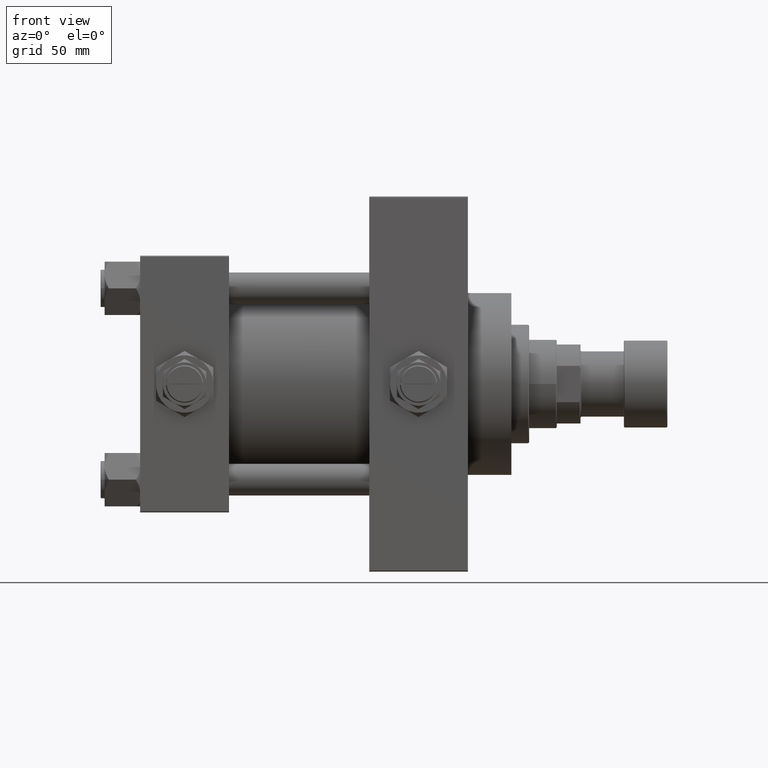
[diagram: clean part render]
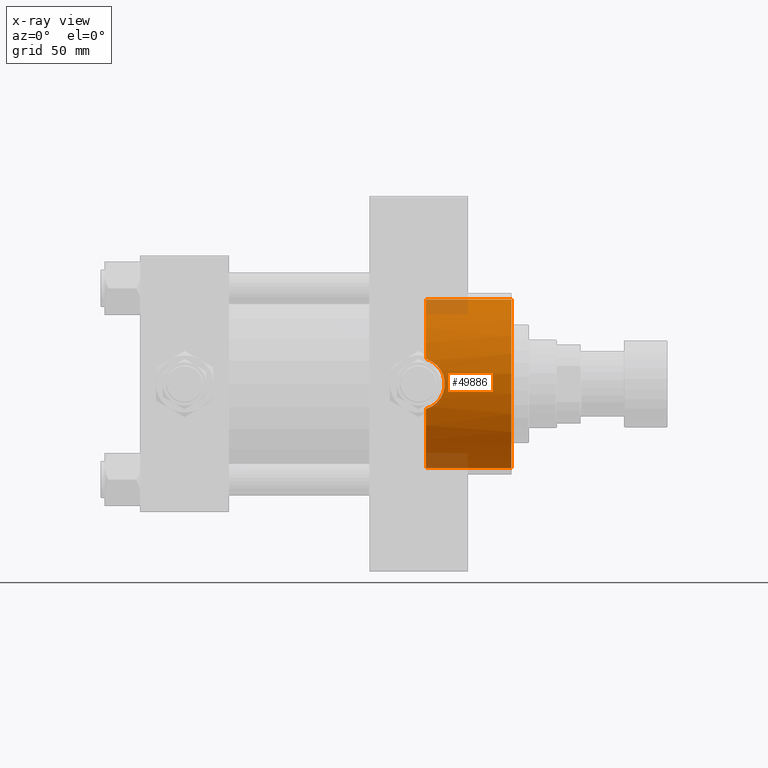
[diagram: x-ray — body ghosted, one internal face saturated and labeled with its STEP entity id]
A machine part, front view, then the same camera in x-ray: the body is ghosted and one INTERNAL B-rep face — a face not visible from any outside direction — is saturated and labeled: STEP entity #49886.
In plain terms, the highlighted cylindrical surface (partial cylindrical patch) has radius 42.75 mm, axis along (1, 0, 0).
Its self-contained STEP definition (entity closure, byte-faithful):
#80 = VERTEX_POINT ( 'NONE', #40852 ) ;
#111 = AXIS2_PLACEMENT_3D ( 'NONE', #32105, #27549, #7745 ) ;
#1821 = LINE ( 'NONE', #8693, #27848 ) ;
#2828 = VERTEX_POINT ( 'NONE', #7087 ) ;
#3014 = CARTESIAN_POINT ( 'NONE',  ( 148.8355753955777629, -41.40179266465073482, -10.65353493722052391 ) ) ;
#3266 = CARTESIAN_POINT ( 'NONE',  ( 147.3542414019935052, -41.14336595071721092, -11.61405540322419405 ) ) ;
#3781 = CARTESIAN_POINT ( 'NONE',  ( 153.9355267676178016, -42.66274983104982255, 2.818638351193893055 ) ) ;
#4592 = EDGE_CURVE ( 'NONE', #24390, #2828, #31759, .T. ) ;
#5372 = DIRECTION ( 'NONE',  ( 1.000000000000000000, -0.000000000000000000, -0.000000000000000000 ) ) ;
#6823 = CARTESIAN_POINT ( 'NONE',  ( 146.0866117877859551, -40.96674013684113902, -12.22248122208934618 ) ) ;
#7076 = CARTESIAN_POINT ( 'NONE',  ( 153.0363689430458010, -42.39775029133584638, 5.512880659442459752 ) ) ;
#7087 = CARTESIAN_POINT ( 'NONE',  ( 144.7399999999999807, -40.82623788692755795, 12.67993690836040521 ) ) ;
#7139 = ORIENTED_EDGE ( 'NONE', *, *, #44272, .F. ) ;
#7232 = CARTESIAN_POINT ( 'NONE',  ( 187.9999999999999716, 0.000000000000000000, 0.000000000000000000 ) ) ;
#7588 = CARTESIAN_POINT ( 'NONE',  ( 151.1624956355439053, -41.90350341365520137, 8.484592245230075491 ) ) ;
#7745 = DIRECTION ( 'NONE',  ( 0.000000000000000000, 0.000000000000000000, -1.000000000000000000 ) ) ;
#8386 = VERTEX_POINT ( 'NONE', #47069 ) ;
#8693 = CARTESIAN_POINT ( 'NONE',  ( 144.7399999999999807, 0.000000000000000000, -42.75000000000000000 ) ) ;
#10181 = VERTEX_POINT ( 'NONE', #22597 ) ;
#10536 = EDGE_CURVE ( 'NONE', #80, #26318, #22796, .T. ) ;
#10889 = CARTESIAN_POINT ( 'NONE',  ( 150.6811910902559077, -41.78848794132222366, -9.029589412144906291 ) ) ;
#11014 = ORIENTED_EDGE ( 'NONE', *, *, #39110, .T. ) ;
#11047 = DIRECTION ( 'NONE',  ( 0.000000000000000000, 0.000000000000000000, -1.000000000000000000 ) ) ;
#11400 = CARTESIAN_POINT ( 'NONE',  ( 147.9852428248123601, -41.24640677797844290, 11.24586139236918214 ) ) ;
#11646 = CARTESIAN_POINT ( 'NONE',  ( 144.7399999999999807, -40.82623788692755795, 12.67993690836040521 ) ) ;
#14686 = CARTESIAN_POINT ( 'NONE',  ( 154.1610424353113729, -42.73166586794579302, -1.434504108584242932 ) ) ;
#15207 = CARTESIAN_POINT ( 'NONE',  ( 149.6630199548697249, -41.56646507779676369, -9.992219170631100766 ) ) ;
#15460 = CARTESIAN_POINT ( 'NONE',  ( 153.7463103793545258, -42.60581913250618413, -3.525264913244961829 ) ) ;
#16578 = CARTESIAN_POINT ( 'NONE',  ( 144.7399999999999807, 0.000000000000000000, 0.000000000000000000 ) ) ;
#18493 = CARTESIAN_POINT ( 'NONE',  ( 151.7830761643834308, -42.05979779156207599, -7.656286047219433399 ) ) ;
#18986 = CARTESIAN_POINT ( 'NONE',  ( 144.7399999999999807, 5.235365066354935472E-15, 42.75000000000000000 ) ) ;
#19272 = CARTESIAN_POINT ( 'NONE',  ( 153.0298137930814732, -42.39589313351282129, -5.526869527314861585 ) ) ;
#21773 = DIRECTION ( 'NONE',  ( 1.000000000000000000, -0.000000000000000000, -0.000000000000000000 ) ) ;
#22000 = FACE_OUTER_BOUND ( 'NONE', #46667, .T. ) ;
#22315 = CARTESIAN_POINT ( 'NONE',  ( 152.5392672892635346, -42.26019519886384757, -6.460440162556747801 ) ) ;
#22569 = CARTESIAN_POINT ( 'NONE',  ( 154.1061453106131012, -42.71489450414986067, 1.767314014186006421 ) ) ;
#22597 = CARTESIAN_POINT ( 'NONE',  ( 187.9999999999999716, 0.000000000000000000, -42.75000000000000000 ) ) ;
#22796 = LINE ( 'NONE', #18986, #45720 ) ;
#23335 = CARTESIAN_POINT ( 'NONE',  ( 154.1491276445503900, -42.72812791392467346, 1.413347075717686252 ) ) ;
#24390 = VERTEX_POINT ( 'NONE', #26374 ) ;
#24421 = ORIENTED_EDGE ( 'NONE', *, *, #37759, .F. ) ;
#26000 = AXIS2_PLACEMENT_3D ( 'NONE', #7232, #38727, #11047 ) ;
#26128 = CARTESIAN_POINT ( 'NONE',  ( 146.0894838391766086, -40.96701803660458552, 12.22163151364322786 ) ) ;
#26318 = VERTEX_POINT ( 'NONE', #26414 ) ;
#26374 = CARTESIAN_POINT ( 'NONE',  ( 144.7399999999999807, -40.82623788692756506, -12.67993690836039988 ) ) ;
#26389 = CARTESIAN_POINT ( 'NONE',  ( 151.1459938556710938, -41.89947882874084684, -8.504551669291311455 ) ) ;
#26414 = CARTESIAN_POINT ( 'NONE',  ( 187.9999999999999716, 5.235365066354935472E-15, 42.75000000000000000 ) ) ;
#26900 = CARTESIAN_POINT ( 'NONE',  ( 145.4270130609600642, -40.88917361113285409, 12.47729955562274995 ) ) ;
#27151 = CARTESIAN_POINT ( 'NONE',  ( 147.9623401956243640, -41.24246182355483370, -11.26040908465783552 ) ) ;
#27549 = DIRECTION ( 'NONE',  ( 1.000000000000000000, 0.000000000000000000, 0.000000000000000000 ) ) ;
#27652 = CIRCLE ( 'NONE', #26000, 42.75000000000000000 ) ;
#27848 = VECTOR ( 'NONE', #5372, 1000.000000000000000 ) ;
#29382 = CARTESIAN_POINT ( 'NONE',  ( 144.7399999999999807, 0.000000000000000000, 0.000000000000000000 ) ) ;
#30199 = CARTESIAN_POINT ( 'NONE',  ( 153.3069645189583525, -42.47597988253321688, -4.879662359427102913 ) ) ;
#30715 = CARTESIAN_POINT ( 'NONE',  ( 149.9249778787971650, -41.62197581820226588, -9.758883457264644790 ) ) ;
#30845 = ORIENTED_EDGE ( 'NONE', *, *, #4592, .T. ) ;
#30952 = CIRCLE ( 'NONE', #111, 42.75000000000000000 ) ;
#30966 = CARTESIAN_POINT ( 'NONE',  ( 149.1389740240205128, -41.45739201802923191, 10.44126992344761362 ) ) ;
#31636 = CIRCLE ( 'NONE', #39701, 42.75000000000000000 ) ;
#31759 = B_SPLINE_CURVE_WITH_KNOTS ( 'NONE', 3,
 ( #46423, #34252, #6823, #3266, #27151, #3014, #49991, #15207, #30715, #10889, #26389, #18493, #41594, #49725, #22315, #19272, #30199, #45403, #15460, #49207, #37812, #14686, #33996, #34510, #45657, #23335, #22569, #3781, #46172, #42616, #7076, #33750, #49466, #7588, #34760, #50239, #30966, #11400, #41848, #26128, #26900, #11646 ),
 .UNSPECIFIED., .F., .F.,
 ( 4, 2, 2, 2, 2, 2, 2, 2, 2, 2, 2, 2, 2, 2, 2, 2, 2, 2, 2, 2, 4 ),
 ( 0.000000000000000000, 0.002125631886811253993, 0.004251263773622507985, 0.005314079717028102022, 0.006376895660433695191, 0.008502527547244880662, 0.009565343490650501587, 0.01062815943405612251, 0.01275379132086732273, 0.01381660726427291243, 0.01487942320767850039, 0.01700505509448966418, 0.01806787103789524868, 0.01913068698130082623, 0.02125631886811198135, 0.02338195075492312952, 0.02550758264173428116, 0.02763321452854543628, 0.02975884641535658792, 0.03188447830216774304, 0.03401011018897889121 ),
 .UNSPECIFIED. ) ;
#32105 = CARTESIAN_POINT ( 'NONE',  ( 144.7399999999999807, 0.000000000000000000, 0.000000000000000000 ) ) ;
#32839 = DIRECTION ( 'NONE',  ( 1.000000000000000000, 0.000000000000000000, 0.000000000000000000 ) ) ;
#33187 = CYLINDRICAL_SURFACE ( 'NONE', #34370, 42.75000000000000000 ) ;
#33750 = CARTESIAN_POINT ( 'NONE',  ( 152.3813469663714670, -42.21646729893778627, 6.762467872710391958 ) ) ;
#33996 = CARTESIAN_POINT ( 'NONE',  ( 154.2190876467556677, -42.74971786429958343, -0.7287734874664777429 ) ) ;
#34252 = CARTESIAN_POINT ( 'NONE',  ( 145.4270925851359095, -40.88918089616408480, -12.47727609963712858 ) ) ;
#34370 = AXIS2_PLACEMENT_3D ( 'NONE', #29382, #48659, #37502 ) ;
#34510 = CARTESIAN_POINT ( 'NONE',  ( 154.2204402740231899, -42.75013615013602220, 0.3392730657541593864 ) ) ;
#34760 = CARTESIAN_POINT ( 'NONE',  ( 150.6899591689121394, -41.79050880085012665, 9.020331125314262621 ) ) ;
#34825 = ORIENTED_EDGE ( 'NONE', *, *, #49200, .F. ) ;
#37502 = DIRECTION ( 'NONE',  ( 0.000000000000000000, 0.000000000000000000, -1.000000000000000000 ) ) ;
#37759 = EDGE_CURVE ( 'NONE', #80, #2828, #31636, .T. ) ;
#37812 = CARTESIAN_POINT ( 'NONE',  ( 153.9894081557862933, -42.67922043224351825, -2.483804695984515920 ) ) ;
#38727 = DIRECTION ( 'NONE',  ( 1.000000000000000000, 0.000000000000000000, 0.000000000000000000 ) ) ;
#39110 = EDGE_CURVE ( 'NONE', #26318, #10181, #27652, .T. ) ;
#39701 = AXIS2_PLACEMENT_3D ( 'NONE', #16578, #32839, #47554 ) ;
#40852 = CARTESIAN_POINT ( 'NONE',  ( 144.7399999999999807, 5.235365066354935472E-15, 42.75000000000000000 ) ) ;
#41594 = CARTESIAN_POINT ( 'NONE',  ( 151.9856094472935979, -42.11228528523244563, -7.362719038215900902 ) ) ;
#41848 = CARTESIAN_POINT ( 'NONE',  ( 147.3674952756207688, -41.14533651760912392, 11.60715841709176033 ) ) ;
#42616 = CARTESIAN_POINT ( 'NONE',  ( 153.3180906512883155, -42.47921328321765344, 4.851410986599765884 ) ) ;
#42951 = ORIENTED_EDGE ( 'NONE', *, *, #10536, .T. ) ;
#44272 = EDGE_CURVE ( 'NONE', #24390, #8386, #30952, .T. ) ;
#45403 = CARTESIAN_POINT ( 'NONE',  ( 153.6458388575748870, -42.57581106965982798, -3.870036135680953393 ) ) ;
#45657 = CARTESIAN_POINT ( 'NONE',  ( 154.2064277639875627, -42.74579618513911328, 0.6981213961015130254 ) ) ;
#45720 = VECTOR ( 'NONE', #21773, 1000.000000000000000 ) ;
#46172 = CARTESIAN_POINT ( 'NONE',  ( 153.7664851930732084, -42.61139927358282620, 3.505481660100332242 ) ) ;
#46423 = CARTESIAN_POINT ( 'NONE',  ( 144.7399999999999807, -40.82623788692756506, -12.67993690836039988 ) ) ;
#46667 = EDGE_LOOP ( 'NONE', ( #24421, #42951, #11014, #34825, #7139, #30845 ) ) ;
#47069 = CARTESIAN_POINT ( 'NONE',  ( 144.7399999999999807, 0.000000000000000000, -42.75000000000000000 ) ) ;
#47554 = DIRECTION ( 'NONE',  ( 0.000000000000000000, 0.000000000000000000, -1.000000000000000000 ) ) ;
#48659 = DIRECTION ( 'NONE',  ( 1.000000000000000000, -0.000000000000000000, -0.000000000000000000 ) ) ;
#49200 = EDGE_CURVE ( 'NONE', #8386, #10181, #1821, .T. ) ;
#49207 = CARTESIAN_POINT ( 'NONE',  ( 153.9180342834379758, -42.65750819507706382, -2.832015403792548458 ) ) ;
#49466 = CARTESIAN_POINT ( 'NONE',  ( 152.0065971449161850, -42.11617814458287512, 7.356591765198860600 ) ) ;
#49725 = CARTESIAN_POINT ( 'NONE',  ( 152.3632172565832832, -42.21236386932923779, -6.765392829973841948 ) ) ;
#49886 = ADVANCED_FACE ( 'NONE', ( #22000 ), #33187, .F. ) ;
#49991 = CARTESIAN_POINT ( 'NONE',  ( 149.1188874313220651, -41.45647642344565753, -10.43915827880387326 ) ) ;
#50239 = CARTESIAN_POINT ( 'NONE',  ( 149.6796625534670682, -41.56787051534882949, 9.996256312412176825 ) ) ;